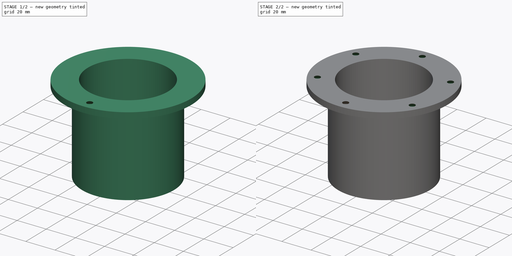
[diagram: build sequence overview — one tinted view per stage of 2, left to right]
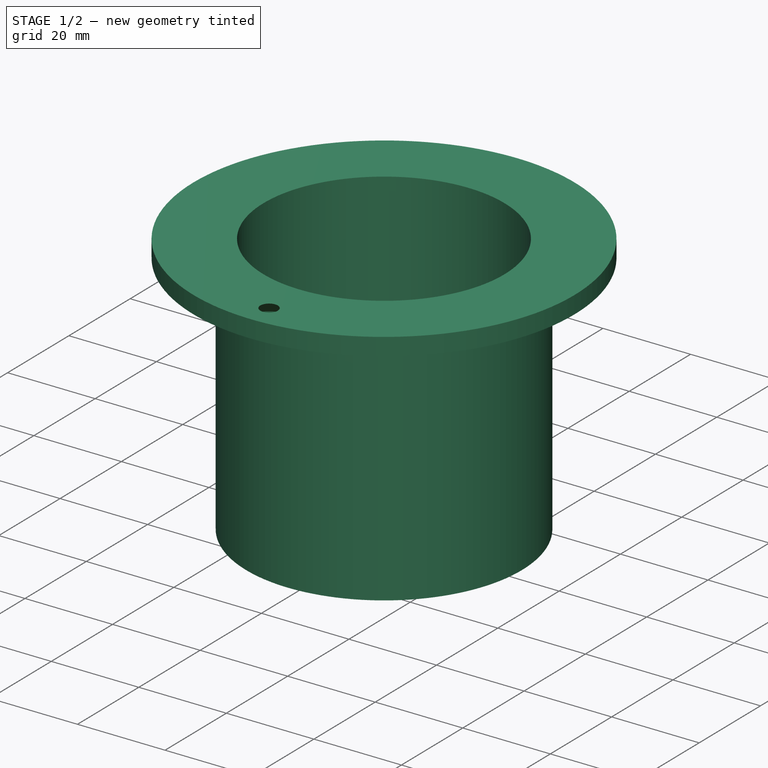
[diagram: stage 1 of 2 — iso view after this stage's code; geometry added in this stage tinted green]
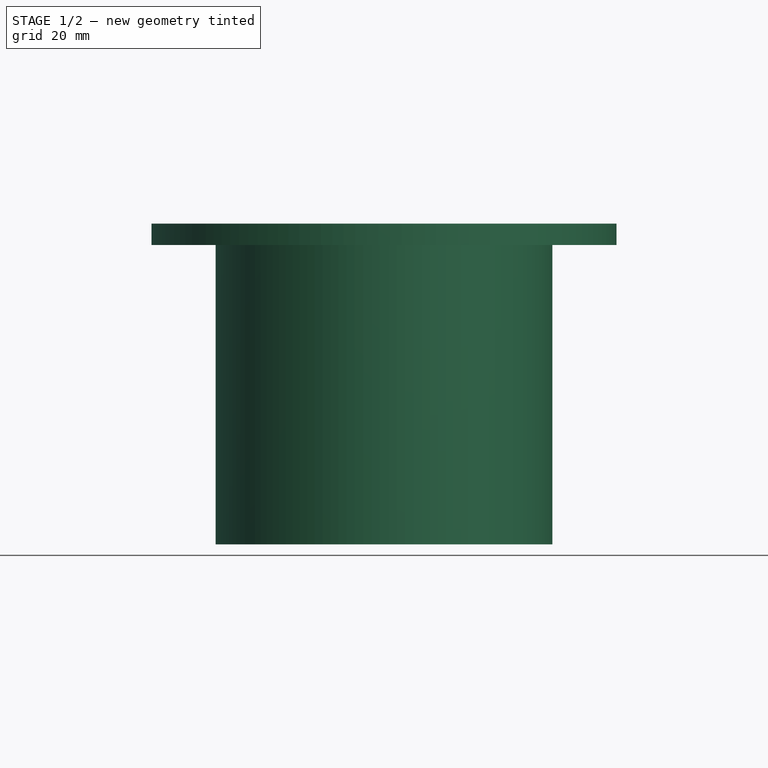
[diagram: stage 1 of 2 — front view after this stage's code; geometry added in this stage tinted green]
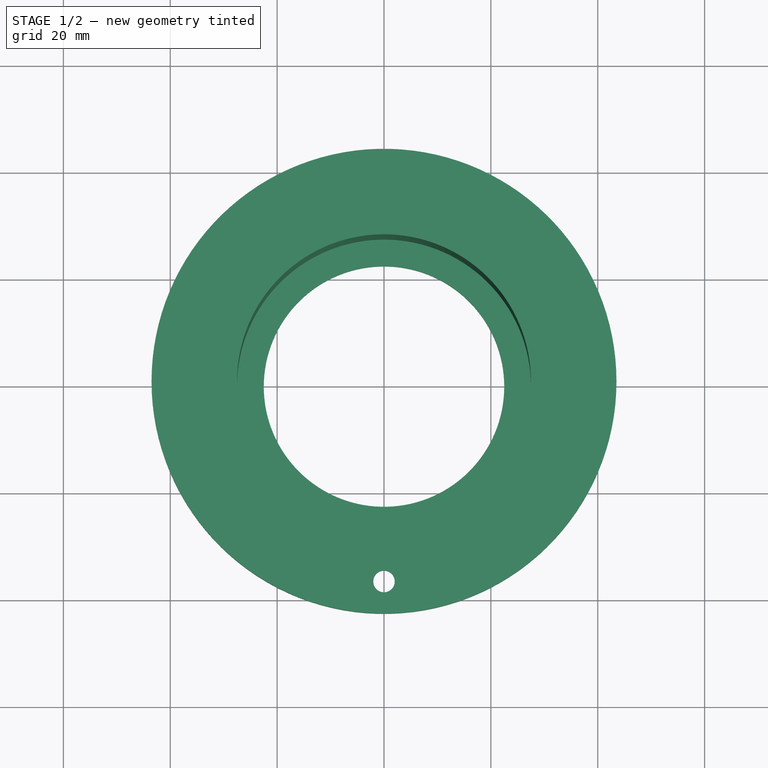
[diagram: stage 1 of 2 — top view after this stage's code; geometry added in this stage tinted green]
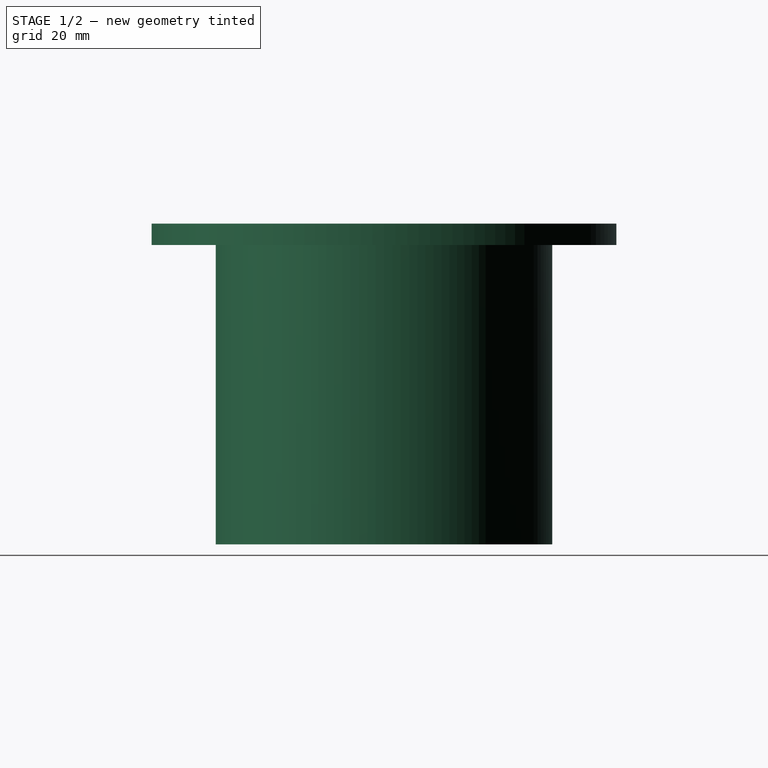
[diagram: stage 1 of 2 — right view after this stage's code; geometry added in this stage tinted green]
FCSTD DOCUMENT  (FreeCAD 0.19R23141 (Git))
Label: electrical_socket
License: All rights reserved
LicenseURL: http://en.wikipedia.org/wiki/All_rights_reserved
objects: Sketcher::SketchObject×3, PartDesign::Body×2, PartDesign::Revolution×1, PartDesign::Hole×1, PartDesign::PolarPattern×1, PartDesign::Pocket×1
note: 12 computed .brp shape members not serialized (recipe doc carries the construction recipe); baked Part::Feature solids carry a one-line shape summary decoded from their .brp

FEATURE [PartDesign::Body] Body
  Origin = -> Origin
FEATURE [Sketcher::SketchObject] Sketch
  MapMode = 5
  Placement = pos=(0,0,0) rot=(1,0,0;1.5708rad)
  Support = -> [XZ_Plane001]
  sketch-geometry (8):
    g0: LineSegment StartX=-22.5 StartY=0 StartZ=0 EndX=-31.5 EndY=0 EndZ=0
    g1: LineSegment StartX=-31.5 StartY=0 StartZ=0 EndX=-31.5 EndY=56 EndZ=0
    g2: LineSegment StartX=-31.5 StartY=56 StartZ=0 EndX=-43.5 EndY=56 EndZ=0
    g3: LineSegment StartX=-43.5 StartY=56 StartZ=0 EndX=-43.5 EndY=60 EndZ=0
    g4: LineSegment StartX=-43.5 StartY=60 StartZ=0 EndX=-27.5 EndY=60 EndZ=0
    g5: LineSegment StartX=-27.5 StartY=60 StartZ=0 EndX=-27.5 EndY=2.6 EndZ=0
    g6: LineSegment StartX=-27.5 StartY=2.6 StartZ=0 EndX=-22.5 EndY=2.6 EndZ=0
    g7: LineSegment StartX=-22.5 StartY=2.6 StartZ=0 EndX=-22.5 EndY=0 EndZ=0
  constraints (24):
    c: PointOnObject(g0,g-1)
    c: Horizontal(g0)
    c: Coincident(g0,g1)
    c: Vertical(g1)
    c: Coincident(g1,g2)
    c: Coincident(g2,g3)
    c: Vertical(g3)
    c: Coincident(g3,g4)
    c: Horizontal(g4)
    c: Coincident(g4,g5)
    c: Vertical(g5)
    c: Coincident(g5,g6)
    c: Horizontal(g6)
    c: Coincident(g6,g7)
    c: Coincident(g7,g0)
    c: Vertical(g7)
    c: DistanceY(g7,g7) = 2.6
    c: DistanceX(g0,g-1) = 22.5
    c: DistanceX(g6,g6) = 5
    c: DistanceX(g0,g5) = 4
    c: DistanceX(g2,g1) = 12
    c: DistanceY(g-1,g4) = 60
    c: DistanceY(g2,g2) = 0
    c: DistanceY(g3,g3) = 4
FEATURE [PartDesign::Revolution] Revolution
  Angle = 360
  Axis = (0,2e-16,1)
  Base = (0,0,0)
  Placement = pos=(0,0,0) rot=(1,0,0;1.5708rad)
  Profile = -> Sketch
  ReferenceAxis = -> Sketch [V_Axis]
FEATURE [Sketcher::SketchObject] Sketch001
  AttachmentOffset = pos=(0,0,52) rot=(0,0,1;0rad)
  MapMode = 5
  Placement = pos=(0,0,52) rot=(0,0,1;0rad)
  Support = -> [XY_Plane001]
  sketch-geometry (1):
    g0: Circle CenterX=0 CenterY=-37.5 CenterZ=0 NormalX=0 NormalY=0 NormalZ=1 AngleXU=0 Radius=3
  constraints (3):
    c: PointOnObject(g0,g-2)
    c: DistanceY(g0,g-1) = 37.5
    c: Radius(g0) = 3
FEATURE [PartDesign::Hole] Hole
  BaseFeature = -> Revolution
  Depth = 10
  DepthType = 0
  Diameter = 10
  DrillPoint = 1
  DrillPointAngle = 90
  HoleCutCountersinkAngle = 90
  HoleCutDepth = 0
  HoleCutDiameter = 11.6
  HoleCutType = 0
  ModelActualThread = false
  Placement = pos=(0,0,0) rot=(1,0,0;1.5708rad)
  Profile = -> Sketch001
  Reversed = true
  Tapered = false
  TaperedAngle = 90
  ThreadAngle = 0
  ThreadClass = 0
  ThreadCutOffInner = 0
  ThreadCutOffOuter = 0
  ThreadDirection = 0
  ThreadFit = 0
  ThreadPitch = 0
  ThreadSize = 0
  ThreadType = 0
  Threaded = false
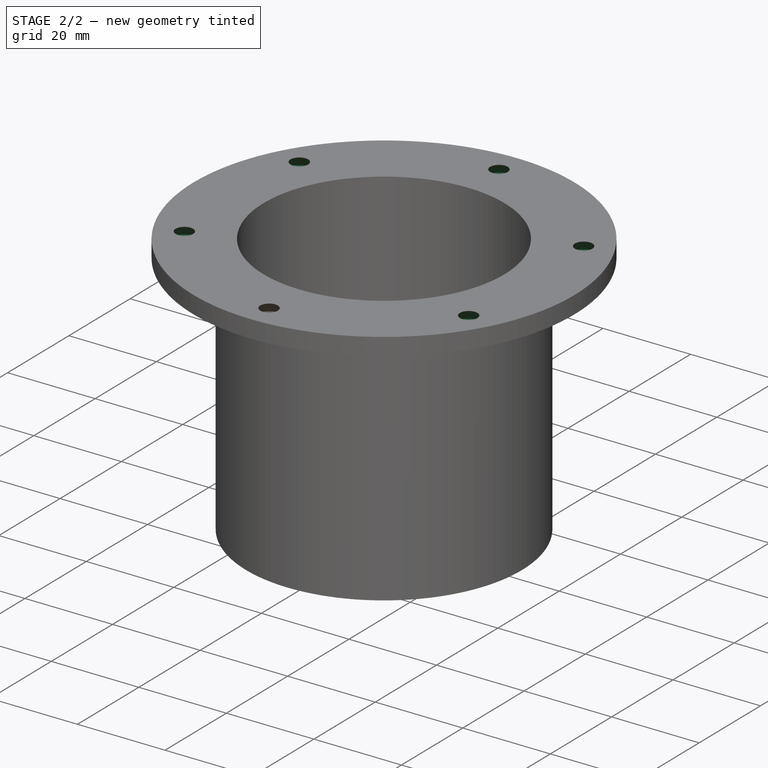
[diagram: stage 2 of 2 — iso view after this stage's code; geometry added in this stage tinted green]
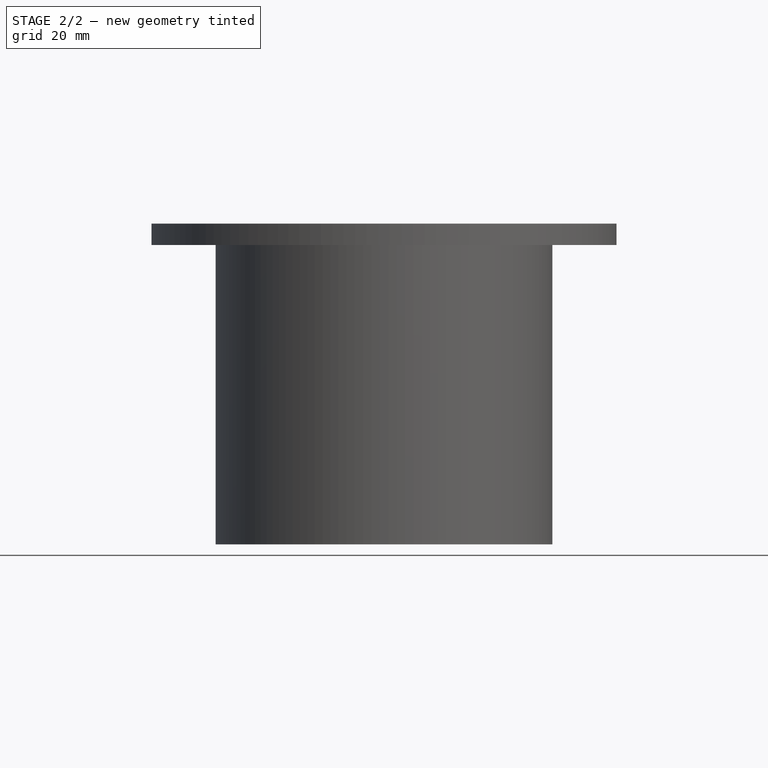
[diagram: stage 2 of 2 — front view after this stage's code; geometry added in this stage tinted green]
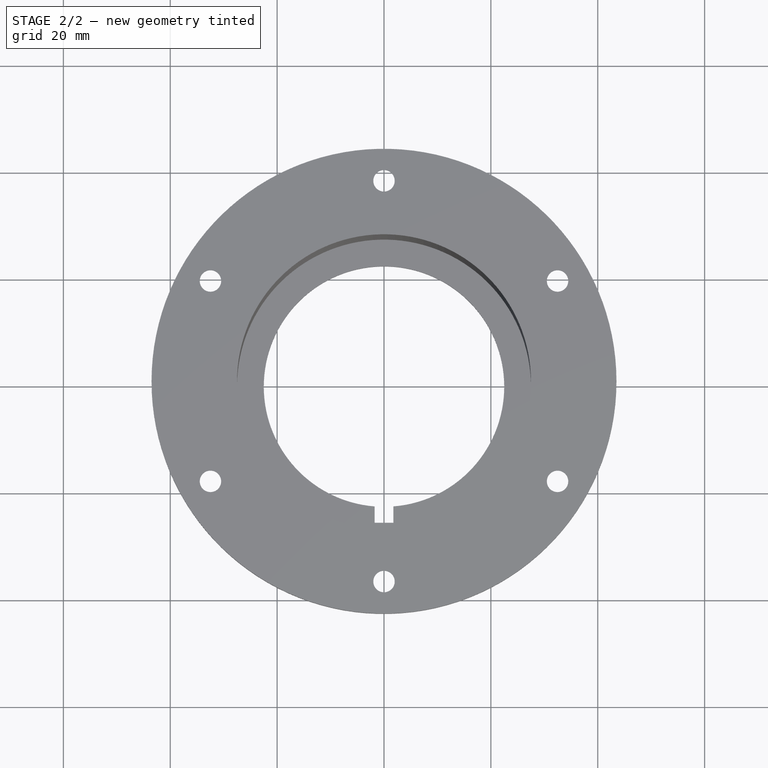
[diagram: stage 2 of 2 — top view after this stage's code; geometry added in this stage tinted green]
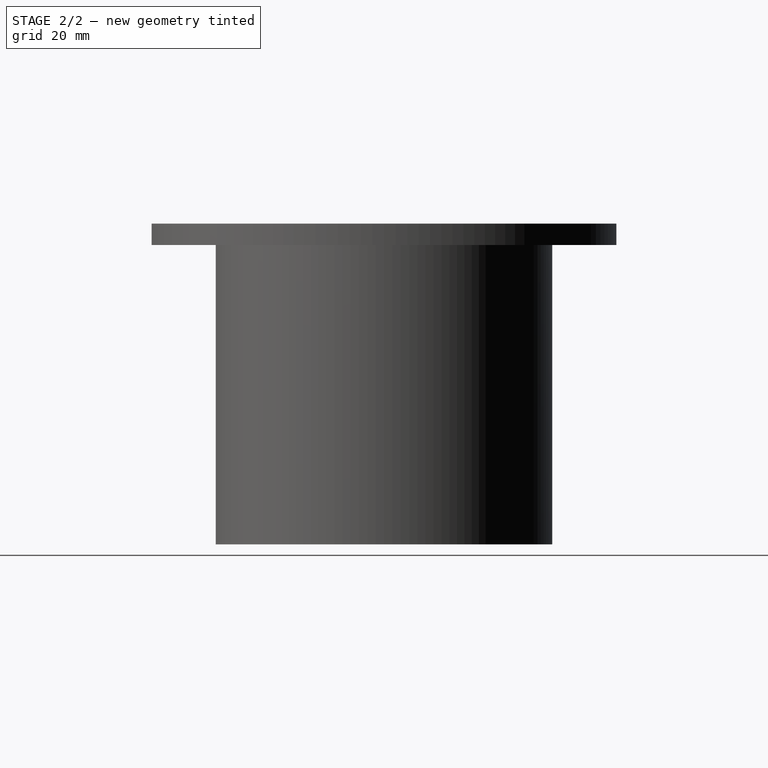
[diagram: stage 2 of 2 — right view after this stage's code; geometry added in this stage tinted green]
FEATURE [PartDesign::PolarPattern] PolarPattern
  Angle = 360
  Axis = -> Sketch001 [N_Axis]
  BaseFeature = -> Hole
  Occurrences = 6
  Originals = -> [Hole]
  Placement = pos=(0,0,0) rot=(1,0,0;1.5708rad)
FEATURE [Sketcher::SketchObject] Sketch002
  MapMode = 5
  Placement = pos=(0,0,0) rot=(1,0,0;3.14159rad)
  Support = -> [PolarPattern]
  sketch-geometry (6):
    g0: LineSegment StartX=-1.75 StartY=25.5 StartZ=0 EndX=1.75 EndY=25.5 EndZ=0
    g1: LineSegment StartX=1.75 StartY=25.5 StartZ=0 EndX=1.75 EndY=0 EndZ=0
    g2: LineSegment StartX=1.75 StartY=0 StartZ=0 EndX=-1.75 EndY=0 EndZ=0
    g3: LineSegment StartX=-1.75 StartY=0 StartZ=0 EndX=-1.75 EndY=25.5 EndZ=0
    g4: LineSegment [constr] StartX=-1.75 StartY=25.5 StartZ=0 EndX=0 EndY=0 EndZ=0
    g5: LineSegment [constr] StartX=0 StartY=0 StartZ=0 EndX=1.75 EndY=25.5 EndZ=0
  constraints (16):
    c: Coincident(g0,g1)
    c: Coincident(g1,g2)
    c: Coincident(g2,g3)
    c: Coincident(g3,g0)
    c: Horizontal(g0)
    c: Horizontal(g2)
    c: Vertical(g1)
    c: Vertical(g3)
    c: Coincident(g0,g4)
    c: Coincident(g4,g-1)
    c: Coincident(g4,g5)
    c: Coincident(g5,g0)
    c: PointOnObject(g2,g-1)
    c: Equal(g4,g5)
    c: DistanceX(g0,g0) = 3.5
    c: DistanceY(g-1,g0) = 25.5
FEATURE [PartDesign::Pocket] Pocket
  BaseFeature = -> PolarPattern
  Length = 5
  Length2 = 100
  Placement = pos=(0,0,0) rot=(1,0,0;1.5708rad)
  Profile = -> Sketch002
  Type = 0
FEATURE [PartDesign::Body] Body001
  Group = -> [Sketch,Revolution,Sketch001,Hole,PolarPattern,Sketch002,Pocket]
  Origin = -> Origin001
  Tip = -> Pocket
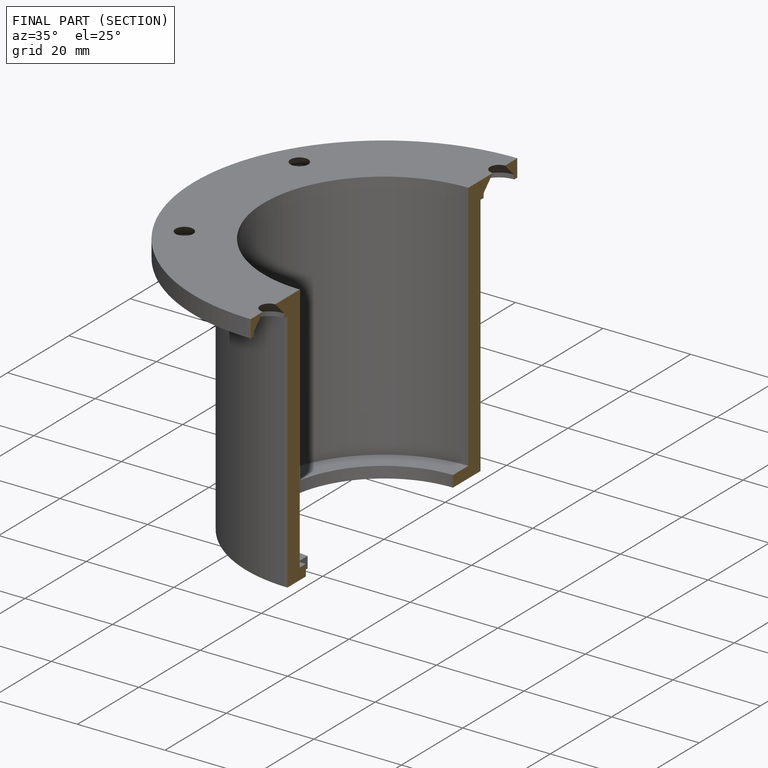
[diagram: finished part — half-section view (interior)]
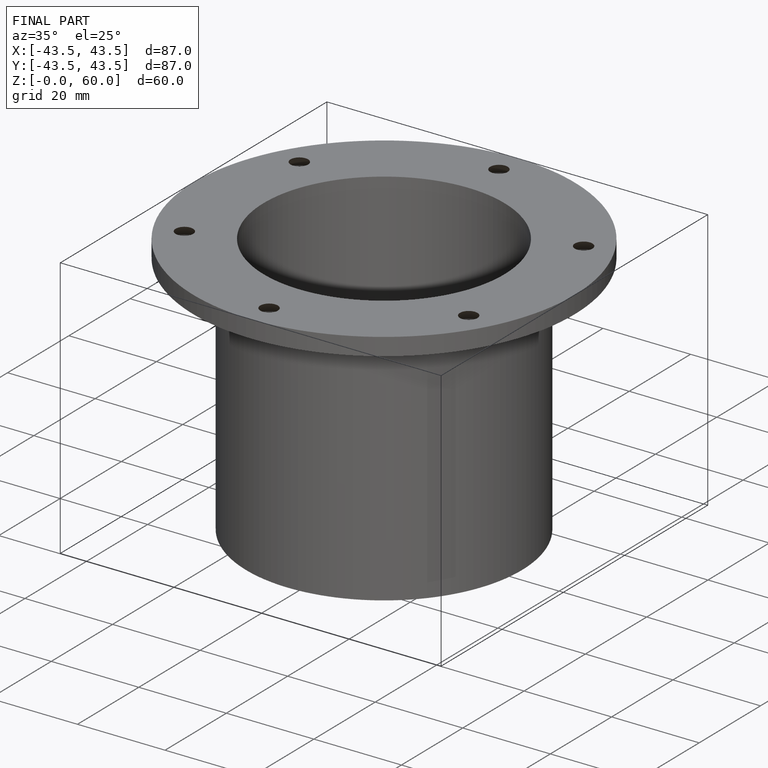
[diagram: finished part — iso view with bounding-box wireframe]
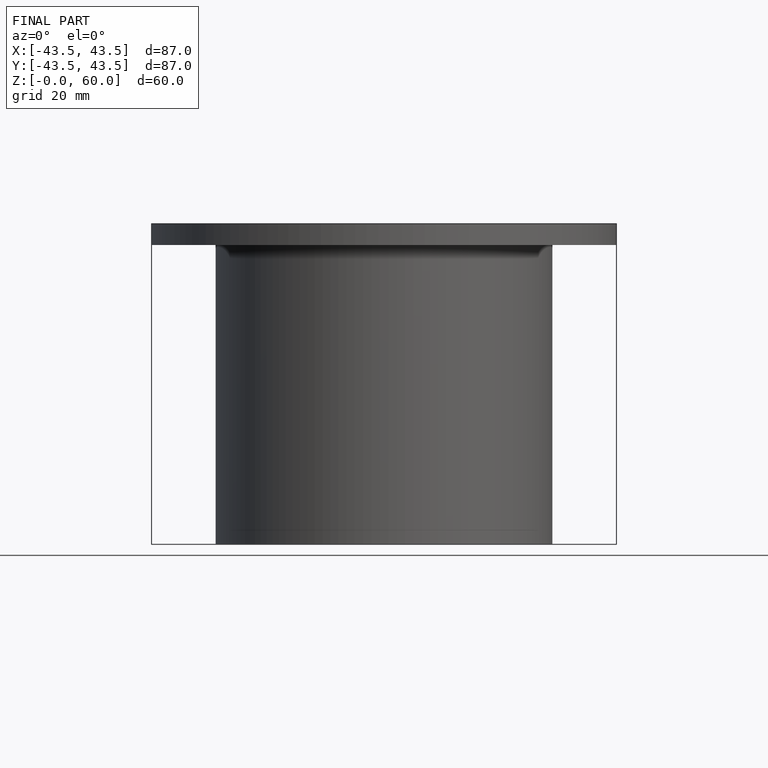
[diagram: finished part — front view with bounding-box wireframe]
